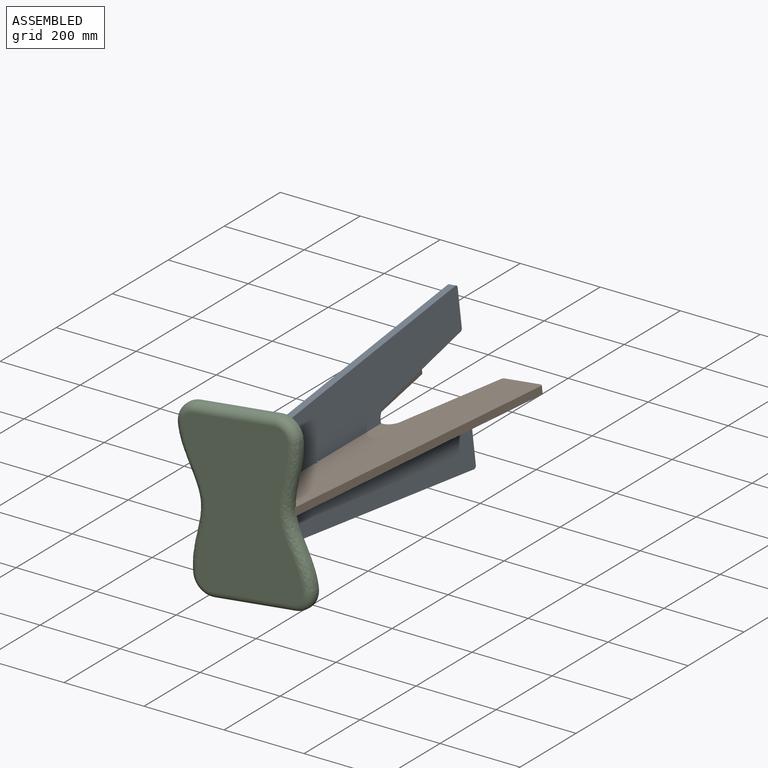
[diagram: assembled view]
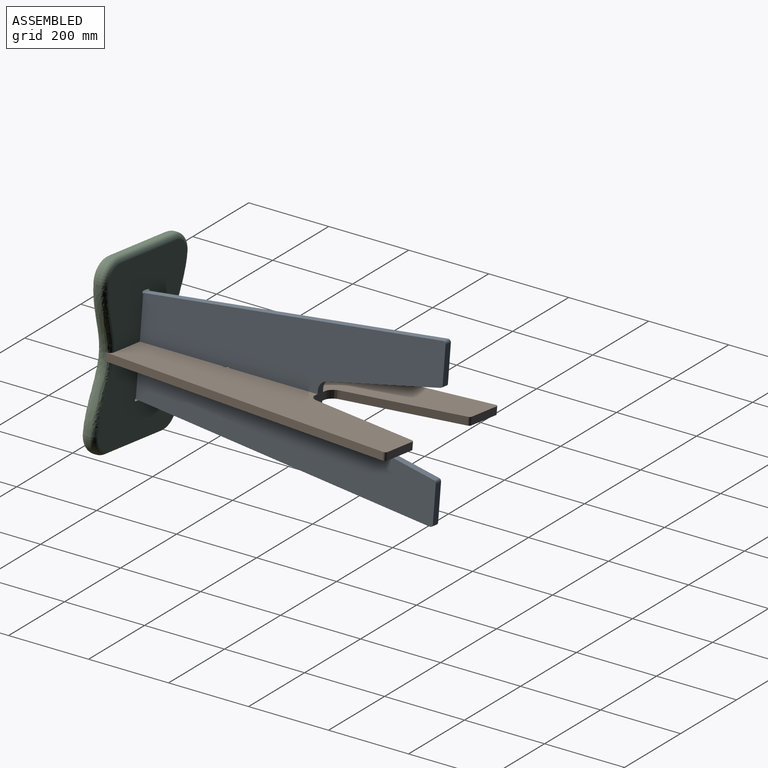
[diagram: assembled view, second angle]
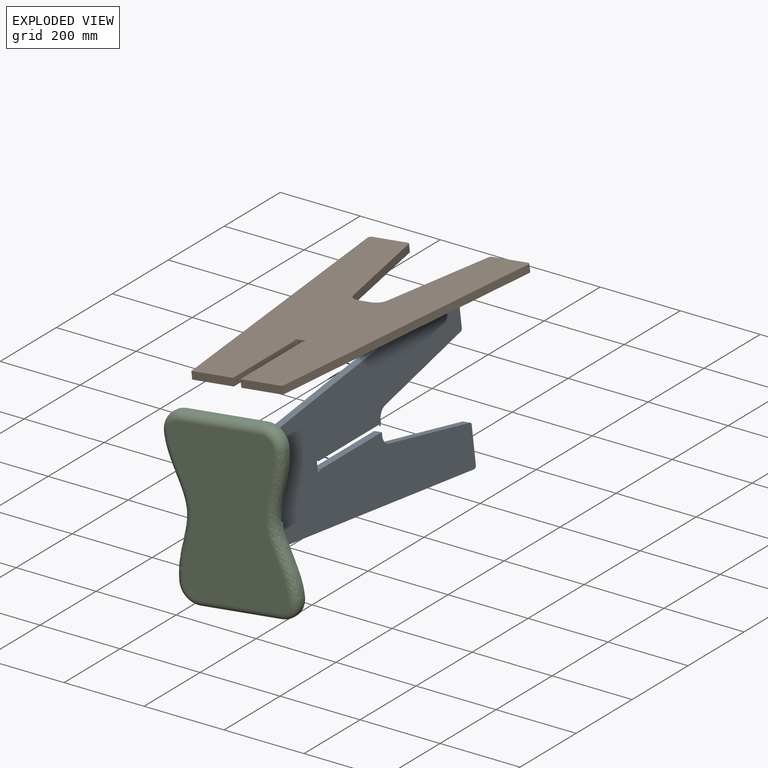
[diagram: exploded view]
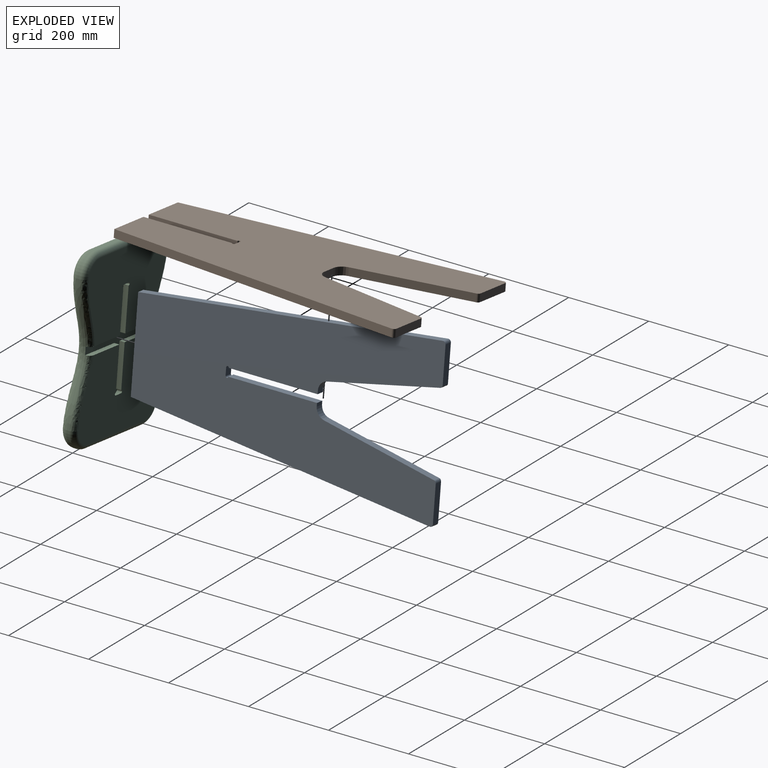
[diagram: exploded view, second angle]
ASSEMBLY  parts=3 mates=4
PART A: 22 faces, bbox 404.8x19.1x762 mm
  f0: plane 754.91x88.07mm, normal (0.99,0,0.12), area 14478.7mm2, adj f1,f19,f20,f21
  f1: plane 228.6x19.05mm, normal (0,0,1), area 4354.8mm2, adj f0,f2,f20,f21
  f2: plane 754.91x88.07mm, normal (-0.99,0,0.12), area 14478.7mm2, adj f1,f3,f20,f21
  f3: cylinder r=6.35mm len=19.05mm, axis (0,1,0), area 204.1mm2, adj f2,f4,f20,f21
  f4: plane 89.3x19.05mm, normal (0,0,-1), area 1701.2mm2, adj f3,f5,f20,f21
  f5: cylinder r=6.35mm len=19.05mm, axis (0,1,0), area 165.2mm2, adj f4,f6,f20,f21
  f6: plane 279.53x58.23mm, normal (0.98,0,-0.2), area 5439.3mm2, adj f5,f7,f20,f21
  f7: cylinder r=25.4mm len=24.87mm, axis (0,1,0), area 660.7mm2, adj f6,f8,f20,f21
  f8: plane 19.05x7.92mm, normal (0,0,-1), area 150.9mm2, adj f7,f9,f20,f21
  f9: plane 222x19.05mm, normal (1,0,0), area 4229mm2, adj f8,f10,f20,f21
  f10: cylinder r=3.3mm len=19.05mm, axis (0,1,0), area 197.6mm2, adj f9,f11,f20,f21
  f11: plane 19.05x19.05mm, normal (0,0,-1), area 362.9mm2, adj f10,f12,f20,f21
  f12: cylinder r=3.3mm len=19.05mm, axis (0,1,0), area 197.6mm2, adj f11,f13,f20,f21
  f13: plane 222x19.05mm, normal (-1,0,0), area 4229mm2, adj f12,f14,f20,f21
  f14: plane 19.05x7.92mm, normal (0,0,-1), area 150.9mm2, adj f13,f15,f20,f21
  f15: cylinder r=25.4mm len=24.87mm, axis (0,1,0), area 660.7mm2, adj f14,f16,f20,f21
  f16: plane 279.53x58.23mm, normal (-0.98,0,-0.2), area 5439.3mm2, adj f15,f17,f20,f21
  f17: cylinder r=6.35mm len=19.05mm, axis (0,1,0), area 165.2mm2, adj f16,f18,f20,f21
  f18: plane 89.3x19.05mm, normal (0,0,-1), area 1701.2mm2, adj f17,f19,f20,f21
  f19: cylinder r=6.35mm len=19.05mm, axis (0,1,0), area 204.1mm2, adj f0,f18,f20,f21
  f20: plane 762x404.83mm, normal (0,-1,0), area 195100.6mm2, adj f0,f1,f2,f3,f4,f5,f6,f7
  f21: plane 762x404.83mm, normal (0,1,0), area 195100.6mm2, adj f0,f1,f2,f3,f4,f5,f6,f7
PART B: 22 faces, bbox 404.8x19.1x762 mm
  f0: plane 34.89x19.05mm, normal (0,0,-1), area 664.7mm2, adj f1,f19,f20,f21
  f1: cylinder r=25.4mm len=24.87mm, axis (0,1,0), area 660.7mm2, adj f0,f2,f20,f21
  f2: plane 279.53x58.23mm, normal (-0.98,0,-0.2), area 5439.3mm2, adj f1,f3,f20,f21
  f3: cylinder r=6.35mm len=19.05mm, axis (0,1,0), area 165.2mm2, adj f2,f4,f20,f21
  f4: plane 89.3x19.05mm, normal (0,0,-1), area 1701.2mm2, adj f3,f5,f20,f21
  f5: cylinder r=6.35mm len=19.05mm, axis (0,1,0), area 204.1mm2, adj f4,f6,f20,f21
  f6: plane 754.91x88.07mm, normal (0.99,0,0.12), area 14478.7mm2, adj f5,f7,f20,f21
  f7: plane 104.78x19.05mm, normal (0,0,1), area 1996mm2, adj f6,f8,f20,f21
  f8: plane 222x19.05mm, normal (-1,0,0), area 4229mm2, adj f7,f9,f20,f21
  f9: cylinder r=3.3mm len=19.05mm, axis (0,1,0), area 197.6mm2, adj f8,f10,f20,f21
  f10: plane 19.05x19.05mm, normal (0,0,1), area 362.9mm2, adj f9,f11,f20,f21
  f11: cylinder r=3.3mm len=19.05mm, axis (0,1,0), area 197.6mm2, adj f10,f12,f20,f21
  f12: plane 222x19.05mm, normal (1,0,0), area 4229mm2, adj f11,f13,f20,f21
  f13: plane 104.78x19.05mm, normal (0,0,1), area 1996mm2, adj f12,f14,f20,f21
  f14: plane 754.91x88.07mm, normal (-0.99,0,0.12), area 14478.7mm2, adj f13,f15,f20,f21
  f15: cylinder r=6.35mm len=19.05mm, axis (0,1,0), area 204.1mm2, adj f14,f16,f20,f21
  f16: plane 89.3x19.05mm, normal (0,0,-1), area 1701.2mm2, adj f15,f17,f20,f21
  f17: cylinder r=6.35mm len=19.05mm, axis (0,1,0), area 165.2mm2, adj f16,f18,f20,f21
  f18: plane 279.53x58.23mm, normal (0.98,0,-0.2), area 5439.3mm2, adj f17,f19,f20,f21
  f19: cylinder r=25.4mm len=24.87mm, axis (0,1,0), area 660.7mm2, adj f0,f18,f20,f21
  f20: plane 762x404.83mm, normal (0,-1,0), area 195100.6mm2, adj f0,f1,f2,f3,f4,f5,f6,f7
  f21: plane 762x404.83mm, normal (0,1,0), area 195100.6mm2, adj f0,f1,f2,f3,f4,f5,f6,f7
PART C: 44 faces, bbox 458.8x313.7x38.6 mm
  f0: extruded ~330.2x38.1mm, area 2163.1mm2, adj f2,f8,f25,f30,f35,f36
  f1: plane 279.4x193.71mm, normal (0,0,-1), area 45929.2mm2, adj f12,f13,f14,f15,f16,f17,f18,f31
  f2: cylinder r=50.8mm len=50.8mm, axis (0,0,-1), area 506.7mm2, adj f0,f3,f34,f37
  f3: plane 203.2x6.35mm, normal (-1,0,0), area 1290.3mm2, adj f2,f4,f33,f39
  f4: cylinder r=50.8mm len=50.8mm, axis (0,0,-1), area 506.7mm2, adj f3,f5,f32,f41
  f5: extruded ~330.2x38.1mm, area 2163.1mm2, adj f4,f6,f25,f26,f31,f43
  f6: cylinder r=50.8mm len=50.8mm, axis (0,0,-1), area 506.7mm2, adj f5,f7,f27,f42
  f7: plane 203.2x6.35mm, normal (1,0,0), area 1290.3mm2, adj f6,f8,f28,f40
  f8: cylinder r=50.8mm len=50.8mm, axis (0,0,-1), area 506.7mm2, adj f0,f7,f29,f38
  f9: plane 393.7x266.7mm, normal (0,0,1), area 91736.4mm2, adj f36,f37,f38,f39,f40,f41,f42,f43
  f10: plane 279.4x193.71mm, normal (0,0,-1), area 45929.2mm2, adj f11,f19,f20,f21,f22,f23,f24,f26
  f11: plane 105.75x13.25mm, normal (-1,0,0), area 1301.3mm2, adj f10,f24,f25,f26
  f12: plane 105.74x13.23mm, normal (1,0,0), area 1301.3mm2, adj f1,f13,f25,f31
  f13: plane 104.52x12.7mm, normal (0,1,0), area 1327.4mm2, adj f1,f12,f14,f25
  f14: cylinder r=3.3mm len=12.7mm, axis (0,0,-1), area 131.7mm2, adj f1,f13,f15,f25
  f15: plane 19.05x12.7mm, normal (1,0,0), area 241.9mm2, adj f1,f14,f16,f25
  f16: cylinder r=3.3mm len=12.7mm, axis (0,0,-1), area 131.7mm2, adj f1,f15,f17,f25
  f17: plane 104.52x12.7mm, normal (0,-1,0), area 1327.4mm2, adj f1,f16,f18,f25
  f18: plane 105.75x13.25mm, normal (1,0,0), area 1301.3mm2, adj f1,f17,f25,f35
  f19: plane 105.74x13.23mm, normal (-1,0,0), area 1301.3mm2, adj f10,f20,f25,f30
  f20: plane 104.52x12.7mm, normal (0,-1,0), area 1327.4mm2, adj f10,f19,f21,f25
  f21: cylinder r=3.3mm len=12.7mm, axis (0,0,-1), area 131.7mm2, adj f10,f20,f22,f25
  f22: plane 19.05x12.7mm, normal (-1,0,0), area 241.9mm2, adj f10,f21,f23,f25
  f23: cylinder r=3.3mm len=12.7mm, axis (0,0,-1), area 131.7mm2, adj f10,f22,f24,f25
  f24: plane 104.52x12.7mm, normal (0,1,0), area 1327.4mm2, adj f10,f11,f23,f25
  f25: plane 241.3x229.49mm, normal (0,0,-1), area 8662.7mm2, adj f0,f5,f11,f12,f13,f14,f15,f16
  f26: bspline ~221.92x50.54mm, area 3210.1mm2, adj f5,f10,f11,f27
  f27: torus R=38.1mm, axis (0,0,1), area 1447.3mm2, adj f6,f10,f26,f28
  f28: cylinder r=12.7mm len=203.2mm, axis (0,1,0), area 4053.7mm2, adj f7,f10,f27,f29
  f29: torus R=38.1mm, axis (0,0,1), area 1447.3mm2, adj f8,f10,f28,f30
  f30: bspline ~221.92x50.54mm, area 3210.1mm2, adj f0,f10,f19,f29
  f31: bspline ~221.92x50.54mm, area 3210.1mm2, adj f1,f5,f12,f32
  f32: torus R=38.1mm, axis (0,0,1), area 1447.3mm2, adj f1,f4,f31,f33
  f33: cylinder r=12.7mm len=203.2mm, axis (0,-1,0), area 4053.7mm2, adj f1,f3,f32,f34
  f34: torus R=38.1mm, axis (0,0,1), area 1447.3mm2, adj f1,f2,f33,f35
  f35: bspline ~221.92x50.54mm, area 3210.1mm2, adj f0,f1,f18,f34
  f36: bspline ~411.32x57.15mm, area 10193.3mm2, adj f0,f9,f37,f38
  f37: torus R=31.75mm, axis (0,0,1), area 2062.4mm2, adj f2,f9,f36,f39
  f38: torus R=31.75mm, axis (0,0,1), area 2062.4mm2, adj f8,f9,f36,f40
  f39: cylinder r=19.05mm len=203.2mm, axis (0,1,0), area 6080.5mm2, adj f3,f9,f37,f41
  f40: cylinder r=19.05mm len=203.2mm, axis (0,-1,0), area 6080.5mm2, adj f7,f9,f38,f42
  f41: torus R=31.75mm, axis (0,0,1), area 2062.4mm2, adj f4,f9,f39,f43
  f42: torus R=31.75mm, axis (0,0,1), area 2062.4mm2, adj f6,f9,f40,f43
  f43: bspline ~458.24x57.15mm, area 10192.8mm2, adj f5,f9,f41,f42
PLACE A rot(axis=(0.62,0.55,-0.55),116.2deg) t=(-277.17,-242.18,29.26)mm
PLACE B rot(axis=(1,-0.06,0.06),90.2deg) t=(-287.73,-242.18,37.62)mm
PLACE C rot(axis=(0.62,0.55,-0.55),116.2deg) t=(-286.63,-686.68,28.16)mm
MATE planar C.f25 <-> A.f1  axis (0,1,0) through (-286.63,-699.38,28.16)mm
MATE planar B.f20 <-> A.f13  axis (0.12,0,-0.99) through (-285.52,-323.23,18.7)mm
MATE planar B.f8 <-> A.f21  axis (-0.99,0,-0.12) through (-276.06,-699.38,19.8)mm
MATE planar B.f10 <-> A.f11  axis (0,-1,0) through (-286.63,-470.78,28.16)mm
